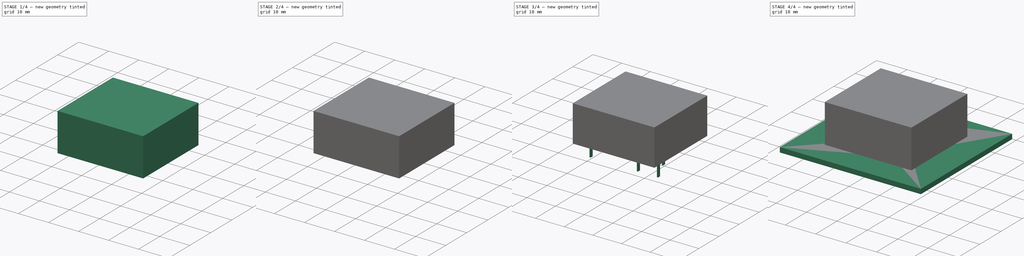
[diagram: build sequence overview — one tinted view per stage of 4, left to right]
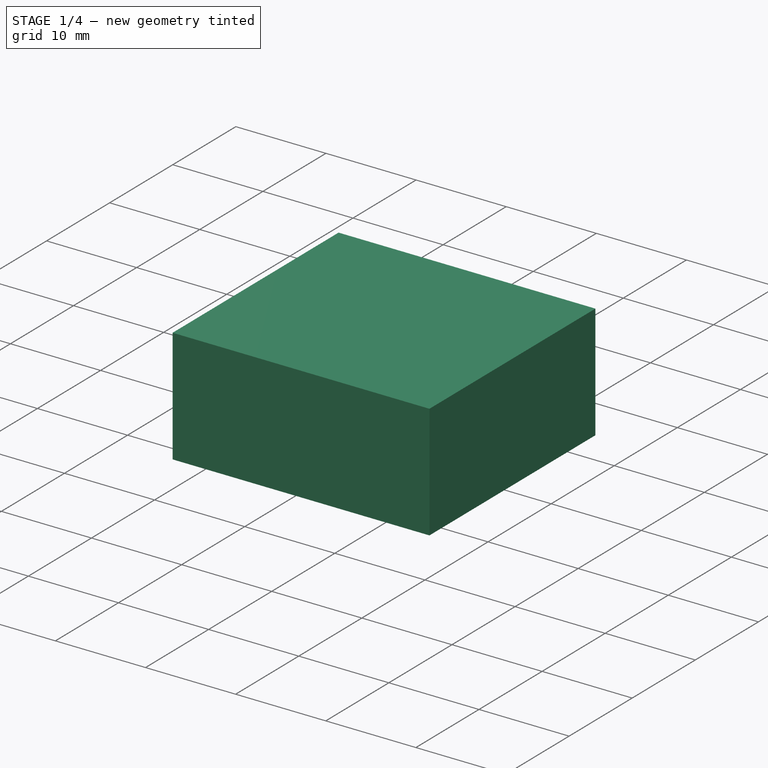
[diagram: stage 1 of 4 — iso view after this stage's code; geometry added in this stage tinted green]
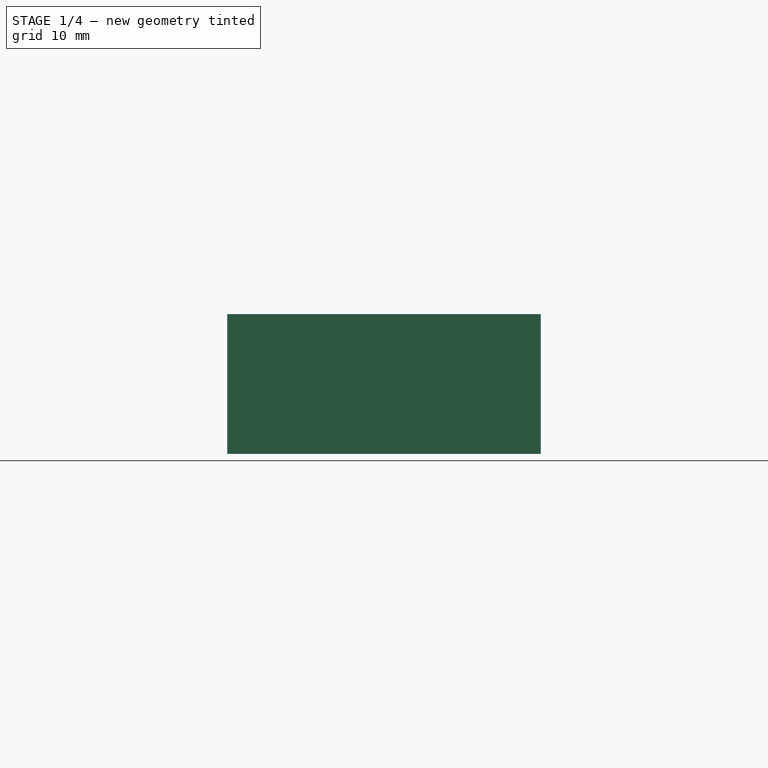
[diagram: stage 1 of 4 — front view after this stage's code; geometry added in this stage tinted green]
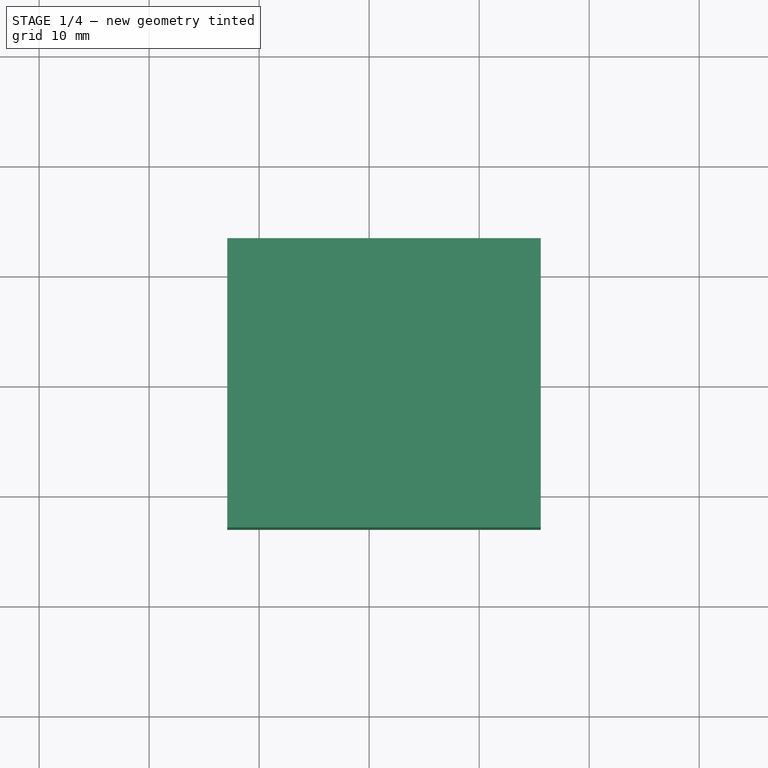
[diagram: stage 1 of 4 — top view after this stage's code; geometry added in this stage tinted green]
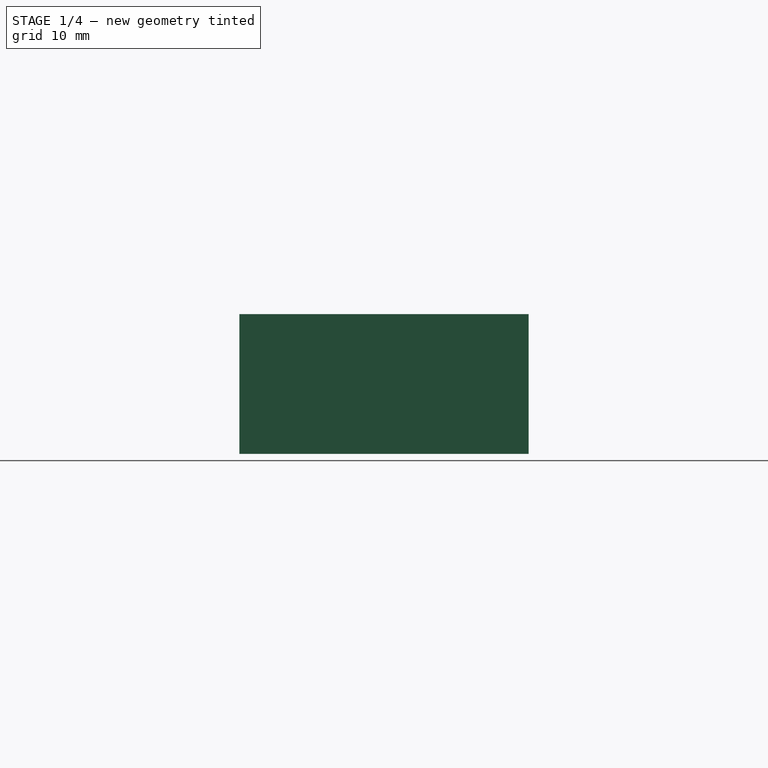
[diagram: stage 1 of 4 — right view after this stage's code; geometry added in this stage tinted green]
FCSTD DOCUMENT  (FreeCAD 0.16R6712 (Git))
Label: Relay_SPDT_Finder_40.11
License: All rights reserved
LicenseURL: http://en.wikipedia.org/wiki/All_rights_reserved
objects: Sketcher::SketchObject×9, Part::FeaturePython×6, PartDesign::Pad×5, Part::Feature×3, PartDesign::Revolution×3, App::DocumentObjectGroup×2, PartDesign::Pocket×1, Part::MultiFuse×1
note: 37 computed .brp shape members not serialized (recipe doc carries the construction recipe); baked Part::Feature solids carry a one-line shape summary decoded from their .brp

FEATURE [Sketcher::SketchObject] Sketch005
  sketch-geometry (4):
    g0: LineSegment StartX=-2.9 StartY=3.3 StartZ=0 EndX=25.6 EndY=3.3 EndZ=0
    g1: LineSegment StartX=25.6 StartY=3.3 StartZ=0 EndX=25.6 EndY=-23 EndZ=0
    g2: LineSegment StartX=25.6 StartY=-23 StartZ=0 EndX=-2.9 EndY=-23 EndZ=0
    g3: LineSegment StartX=-2.9 StartY=-23 StartZ=0 EndX=-2.9 EndY=3.3 EndZ=0
  constraints (12):
    c: Coincident(g0,g1)
    c: Coincident(g1,g2)
    c: Coincident(g2,g3)
    c: Coincident(g3,g0)
    c: Horizontal(g0)
    c: Horizontal(g2)
    c: Vertical(g1)
    c: Vertical(g3)
    c: DistanceX(g0,g-1) = 2.9
    c: DistanceY(g-1,g0) = 3.3
    c: DistanceY(g3,g3) = 26.3
    c: DistanceX(g0,g0) = 28.5
FEATURE [PartDesign::Pad] Pad001
  Length = 0.5
  Length2 = 100
  Sketch = -> Sketch005
  Type = 0
FEATURE [Sketcher::SketchObject] Sketch006
  ExternalGeometry = -> [Pad001]
  Placement = pos=(0,0,0.5) rot=(0,0,1;0rad)
  Support = -> Pad001 [Face6]
  sketch-geometry (8):
    g0: LineSegment StartX=-2.9 StartY=3.3 StartZ=0 EndX=25.6 EndY=3.3 EndZ=0
    g1: LineSegment StartX=25.6 StartY=3.3 StartZ=0 EndX=25.6 EndY=-23 EndZ=0
    g2: LineSegment StartX=25.6 StartY=-23 StartZ=0 EndX=-2.9 EndY=-23 EndZ=0
    g3: LineSegment StartX=-2.9 StartY=-23 StartZ=0 EndX=-2.9 EndY=3.3 EndZ=0
    g4: LineSegment StartX=25.1 StartY=-22.5 StartZ=0 EndX=-2.4 EndY=-22.5 EndZ=0
    g5: LineSegment StartX=-2.4 StartY=-22.5 StartZ=0 EndX=-2.4 EndY=2.8 EndZ=0
    g6: LineSegment StartX=-2.4 StartY=2.8 StartZ=0 EndX=25.1 EndY=2.8 EndZ=0
    g7: LineSegment StartX=25.1 StartY=2.8 StartZ=0 EndX=25.1 EndY=-22.5 EndZ=0
  constraints (22):
    c: Coincident(g0,g1)
    c: Coincident(g1,g2)
    c: Coincident(g2,g3)
    c: Coincident(g3,g0)
    c: Horizontal(g0)
    c: Horizontal(g2)
    c: Vertical(g1)
    c: Vertical(g3)
    c: Coincident(g0,g-3)
    c: Coincident(g1,g-4)
    c: Coincident(g4,g5)
    c: Coincident(g5,g6)
    c: Coincident(g6,g7)
    c: Coincident(g7,g4)
    c: Horizontal(g4)
    c: Horizontal(g6)
    c: Vertical(g5)
    c: Vertical(g7)
    c: DistanceX(g0,g5) = 0.5
    c: DistanceY(g5,g0) = 0.5
    c: DistanceX(g6,g0) = 0.5
    c: DistanceY(g1,g4) = 0.5
FEATURE [PartDesign::Pad] Pad002
  Length = 11.95
  Length2 = 100
  Sketch = -> Sketch006
  Type = 0
FEATURE [Sketcher::SketchObject] Sketch008
  Placement = pos=(0,0,12.7) rot=(0,0,1;0rad)
  sketch-geometry (4):
    g0: LineSegment StartX=-2.9 StartY=-23 StartZ=0 EndX=25.6 EndY=-23 EndZ=0
    g1: LineSegment StartX=25.6 StartY=-23 StartZ=0 EndX=25.6 EndY=3.3 EndZ=0
    g2: LineSegment StartX=25.6 StartY=3.3 StartZ=0 EndX=-2.9 EndY=3.3 EndZ=0
    g3: LineSegment StartX=-2.9 StartY=3.3 StartZ=0 EndX=-2.9 EndY=-23 EndZ=0
  constraints (12):
    c: Coincident(g0,g1)
    c: Coincident(g1,g2)
    c: Coincident(g2,g3)
    c: Coincident(g3,g0)
    c: Horizontal(g0)
    c: Horizontal(g2)
    c: Vertical(g1)
    c: Vertical(g3)
    c: DistanceX(g2,g-1) = 2.9
    c: DistanceY(g-1,g2) = 3.3
    c: DistanceY(g1,g1) = 26.3
    c: DistanceX(g0,g0) = 28.5
FEATURE [PartDesign::Pad] Pad003
  Length = 0.24
  Length2 = 100
  Placement = pos=(0,0,12.7) rot=(0,0,1;0rad)
  Reversed = true
  Sketch = -> Sketch008
  Type = 0
FEATURE [Sketcher::SketchObject] Sketch009
  ExternalGeometry = -> [Pad003]
  Placement = pos=(0,0,12.46) rot=(1,0,0;3.14159rad)
  Support = -> Pad003 [Face6]
  sketch-geometry (8):
    g0: LineSegment StartX=-2.9 StartY=23 StartZ=0 EndX=25.6 EndY=23 EndZ=0
    g1: LineSegment StartX=25.6 StartY=23 StartZ=0 EndX=25.6 EndY=-3.3 EndZ=0
    g2: LineSegment StartX=25.6 StartY=-3.3 StartZ=0 EndX=-2.9 EndY=-3.3 EndZ=0
    g3: LineSegment StartX=-2.9 StartY=-3.3 StartZ=0 EndX=-2.9 EndY=23 EndZ=0
    g4: LineSegment StartX=25.36 StartY=-3.06 StartZ=0 EndX=-2.66 EndY=-3.06 EndZ=0
    g5: LineSegment StartX=-2.66 StartY=-3.06 StartZ=0 EndX=-2.66 EndY=22.76 EndZ=0
    g6: LineSegment StartX=-2.66 StartY=22.76 StartZ=0 EndX=25.36 EndY=22.76 EndZ=0
    g7: LineSegment StartX=25.36 StartY=22.76 StartZ=0 EndX=25.36 EndY=-3.06 EndZ=0
  constraints (22):
    c: Coincident(g0,g1)
    c: Coincident(g1,g2)
    c: Coincident(g2,g3)
    c: Coincident(g3,g0)
    c: Horizontal(g0)
    c: Horizontal(g2)
    c: Vertical(g1)
    c: Vertical(g3)
    c: Coincident(g0,g-4)
    c: Coincident(g1,g-3)
    c: Coincident(g4,g5)
    c: Coincident(g5,g6)
    c: Coincident(g6,g7)
    c: Coincident(g7,g4)
    c: Horizontal(g4)
    c: Horizontal(g6)
    c: Vertical(g5)
    c: Vertical(g7)
    c: DistanceX(g4,g1) = 0.24
    c: DistanceY(g1,g4) = 0.24
    c: DistanceX(g2,g4) = 0.24
    c: DistanceY(g5,g0) = 0.24
FEATURE [PartDesign::Pad] Pad004
  Length = 6.14
  Length2 = 100
  Placement = pos=(0,0,12.7) rot=(0,0,1;0rad)
  Sketch = -> Sketch009
  Type = 0
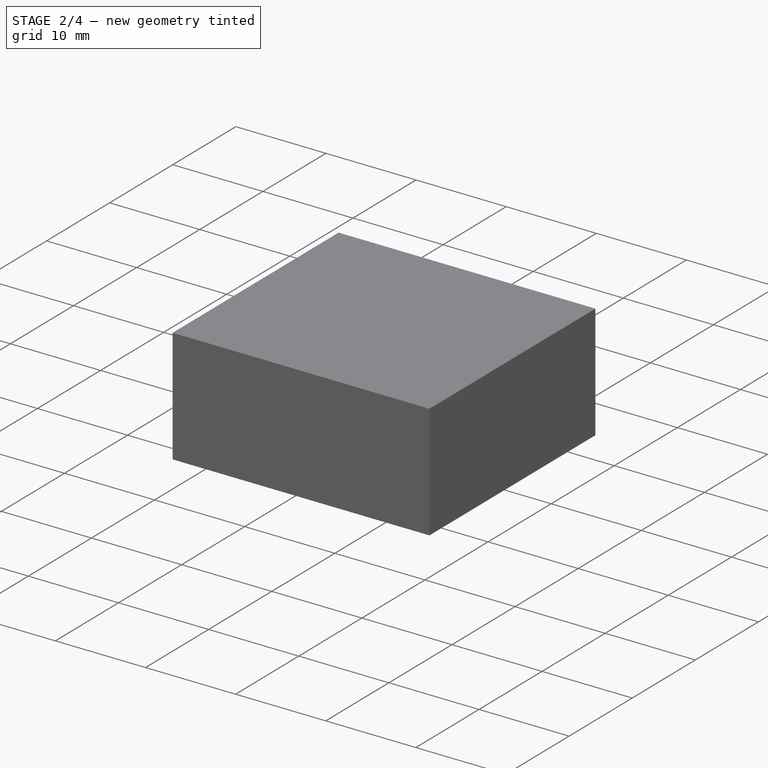
[diagram: stage 2 of 4 — iso view after this stage's code; geometry added in this stage tinted green]
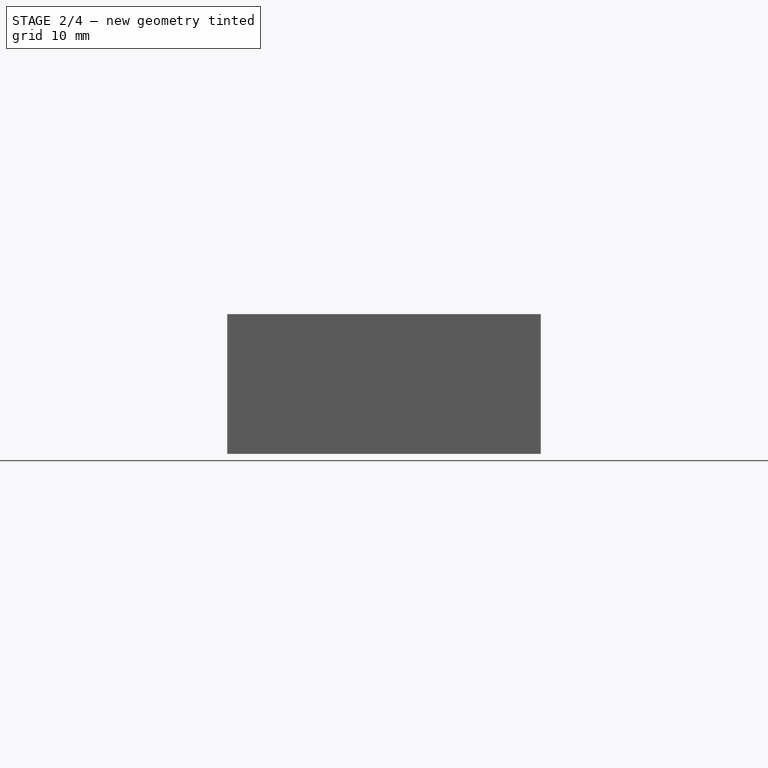
[diagram: stage 2 of 4 — front view after this stage's code; geometry added in this stage tinted green]
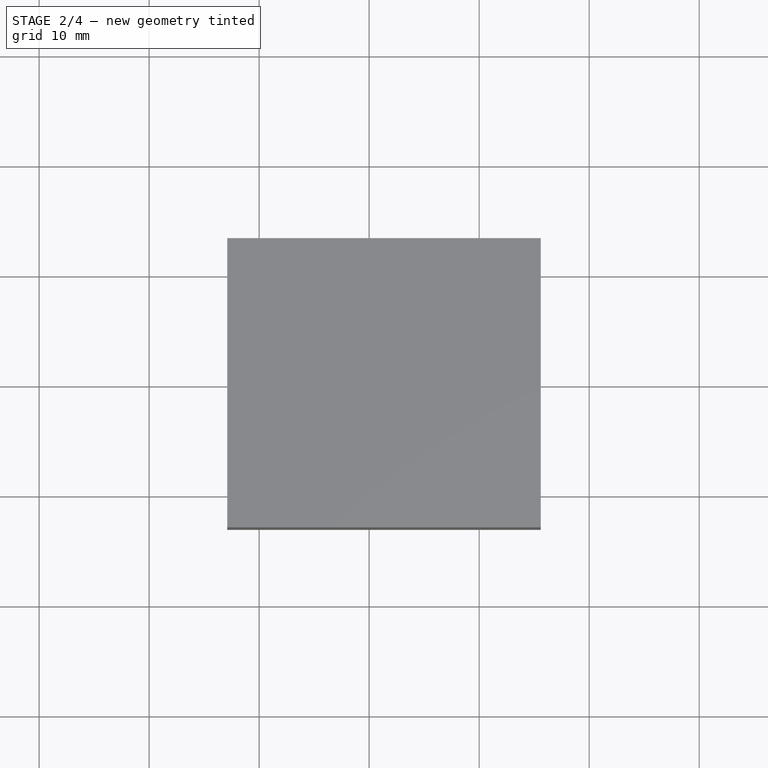
[diagram: stage 2 of 4 — top view after this stage's code; geometry added in this stage tinted green]
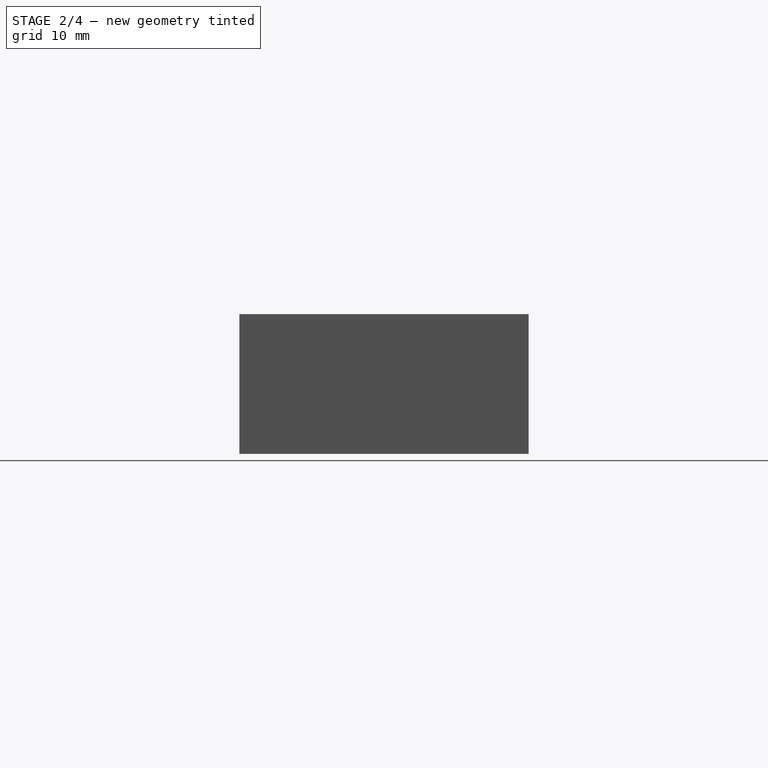
[diagram: stage 2 of 4 — right view after this stage's code; geometry added in this stage tinted green]
FEATURE [PartDesign::Revolution] Revolution001
  Angle = 360
  Axis = (0,21.0206,0)
  Base = (3.98183,-18.0206,4.75)
  Placement = pos=(0,3,4.75) rot=(0,0,1;3.14159rad)
  ReferenceAxis = -> Sketch003 [Axis0]
  Sketch = -> Sketch003
FEATURE [Sketcher::SketchObject] Sketch004
  Placement = pos=(0,3,4.75) rot=(0,0,1;3.14159rad)
  expr: Constraints[14] = 4.25 + 0.25 + 15
  sketch-geometry (5):
    g0: LineSegment [constr] StartX=-4 StartY=21.0206 StartZ=0 EndX=-4 EndY=0 EndZ=0
    g1: LineSegment StartX=-4 StartY=19.25 StartZ=0 EndX=0 EndY=19.25 EndZ=0
    g2: LineSegment StartX=0 StartY=19.25 StartZ=0 EndX=0 EndY=19.5 EndZ=0
    g3: LineSegment StartX=0 StartY=19.5 StartZ=0 EndX=-4 EndY=19.5 EndZ=0
    g4: LineSegment StartX=-4 StartY=19.5 StartZ=0 EndX=-4 EndY=19.25 EndZ=0
  constraints (15):
    c: PointOnObject(g0,g-1)
    c: Vertical(g0)
    c: PointOnObject(g1,g0)
    c: DistanceX(g1,g-1) = 4
    c: Coincident(g1,g2)
    c: Coincident(g2,g3)
    c: Coincident(g3,g4)
    c: Coincident(g4,g1)
    c: Horizontal(g1)
    c: Horizontal(g3)
    c: Vertical(g2)
    c: Vertical(g4)
    c: DistanceX(g3,g3) = 4
    c: DistanceY(g2,g2) = 0.25
    c: DistanceY(g0,g3) = 19.5
FEATURE [PartDesign::Revolution] Revolution002
  Angle = 360
  Axis = (0,21.0206,0)
  Base = (4,-18.0206,4.75)
  Placement = pos=(0,3,4.75) rot=(0,0,1;3.14159rad)
  ReferenceAxis = -> Sketch004 [Axis0]
  Sketch = -> Sketch004
FEATURE [Sketcher::SketchObject] Sketch007
  ExternalGeometry = -> [Pad002]
  Placement = pos=(0,0,12.45) rot=(0,0,1;0rad)
  Support = -> Pad002 [Face10]
  sketch-geometry (8):
    g0: LineSegment StartX=-2.9 StartY=3.3 StartZ=0 EndX=25.6 EndY=3.3 EndZ=0
    g1: LineSegment StartX=25.6 StartY=3.3 StartZ=0 EndX=25.6 EndY=-23 EndZ=0
    g2: LineSegment StartX=25.6 StartY=-23 StartZ=0 EndX=-2.9 EndY=-23 EndZ=0
    g3: LineSegment StartX=-2.9 StartY=-23 StartZ=0 EndX=-2.9 EndY=3.3 EndZ=0
    g4: LineSegment StartX=25.35 StartY=-22.75 StartZ=0 EndX=-2.65 EndY=-22.75 EndZ=0
    g5: LineSegment StartX=-2.65 StartY=-22.75 StartZ=0 EndX=-2.65 EndY=3.05 EndZ=0
    g6: LineSegment StartX=-2.65 StartY=3.05 StartZ=0 EndX=25.35 EndY=3.05 EndZ=0
    g7: LineSegment StartX=25.35 StartY=3.05 StartZ=0 EndX=25.35 EndY=-22.75 EndZ=0
  constraints (22):
    c: Coincident(g0,g1)
    c: Coincident(g1,g2)
    c: Coincident(g2,g3)
    c: Coincident(g3,g0)
    c: Horizontal(g0)
    c: Horizontal(g2)
    c: Vertical(g1)
    c: Vertical(g3)
    c: Coincident(g0,g-3)
    c: Coincident(g1,g-4)
    c: Coincident(g4,g5)
    c: Coincident(g5,g6)
    c: Coincident(g6,g7)
    c: Coincident(g7,g4)
    c: Horizontal(g4)
    c: Horizontal(g6)
    c: Vertical(g5)
    c: Vertical(g7)
    c: DistanceX(g4,g1) = 0.25
    c: DistanceY(g1,g4) = 0.25
    c: DistanceY(g5,g0) = 0.25
    c: DistanceX(g0,g5) = 0.25
FEATURE [PartDesign::Pocket] Pocket
  Length = 6.1
  Sketch = -> Sketch007
  Type = 0
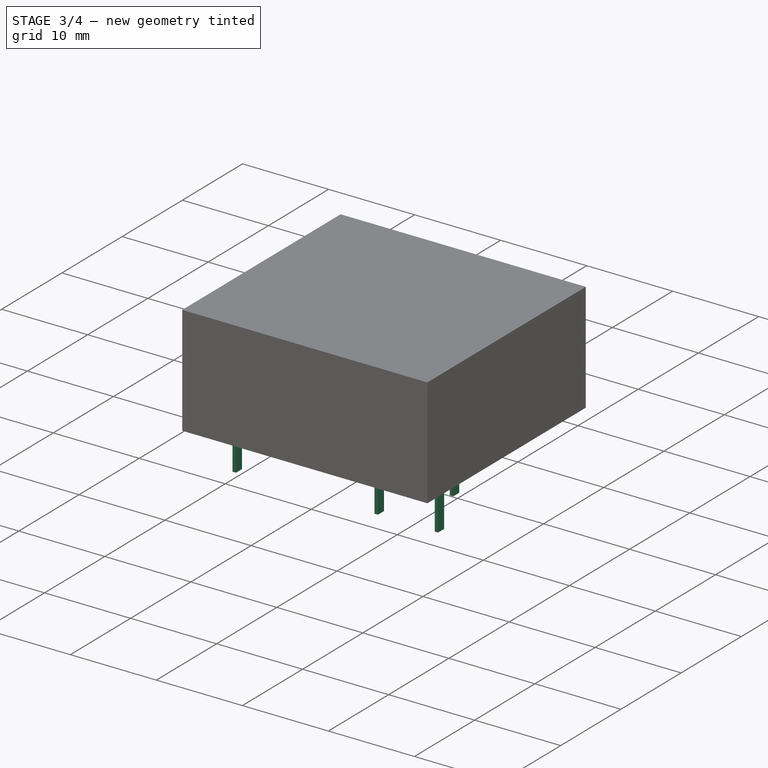
[diagram: stage 3 of 4 — iso view after this stage's code; geometry added in this stage tinted green]
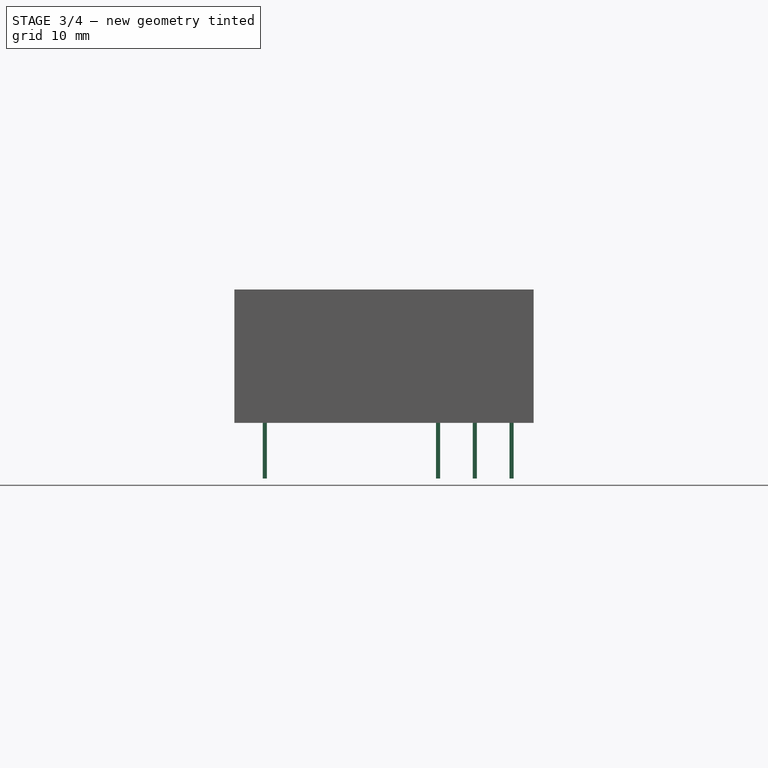
[diagram: stage 3 of 4 — front view after this stage's code; geometry added in this stage tinted green]
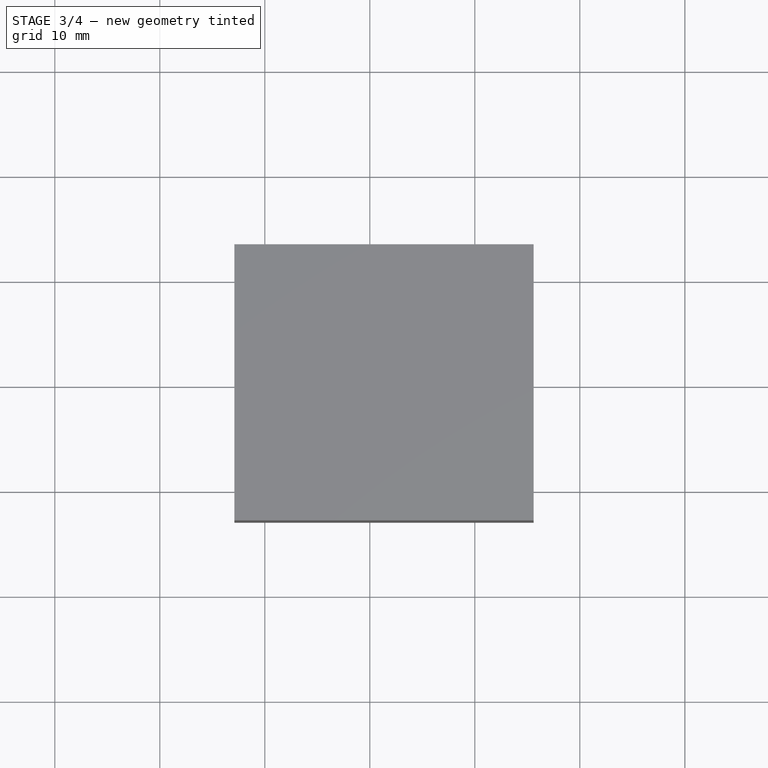
[diagram: stage 3 of 4 — top view after this stage's code; geometry added in this stage tinted green]
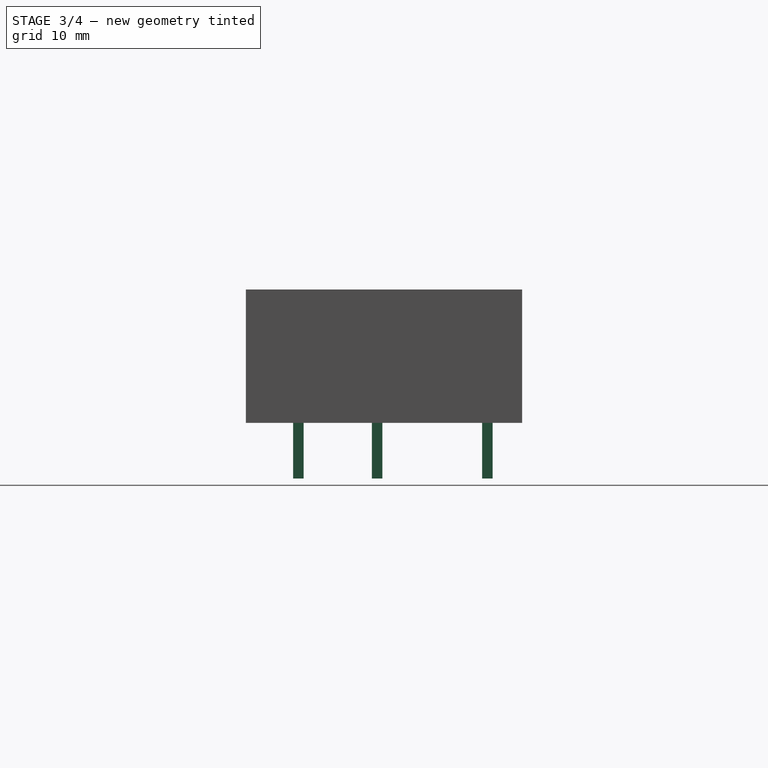
[diagram: stage 3 of 4 — right view after this stage's code; geometry added in this stage tinted green]
FEATURE [Sketcher::SketchObject] Sketch
  Placement = pos=(0,-18,0.5) rot=(0,0,1;1.5708rad)
  sketch-geometry (27):
    g0: LineSegment StartX=-0.5 StartY=0.2 StartZ=0 EndX=0.5 EndY=0.2 EndZ=0
    g1: LineSegment StartX=0.5 StartY=0.2 StartZ=0 EndX=0.5 EndY=-0.2 EndZ=0
    g2: LineSegment StartX=0.5 StartY=-0.2 StartZ=0 EndX=-0.5 EndY=-0.2 EndZ=0
    g3: LineSegment StartX=-0.5 StartY=-0.2 StartZ=0 EndX=-0.5 EndY=0.2 EndZ=0
    g4: GeomPoint [constr] X=0 Y=0.2 Z=0
    g5: GeomPoint [constr] X=0.5 Y=0 Z=0
    g6: LineSegment StartX=17.5 StartY=0.2 StartZ=0 EndX=18.5 EndY=0.2 EndZ=0
    g7: LineSegment StartX=18.5 StartY=0.2 StartZ=0 EndX=18.5 EndY=-0.2 EndZ=0
    g8: LineSegment StartX=18.5 StartY=-0.2 StartZ=0 EndX=17.5 EndY=-0.2 EndZ=0
    g9: LineSegment StartX=17.5 StartY=-0.2 StartZ=0 EndX=17.5 EndY=0.2 EndZ=0
    g10: LineSegment StartX=-0.5 StartY=-16.3 StartZ=0 EndX=0.5 EndY=-16.3 EndZ=0
    g11: LineSegment StartX=0.5 StartY=-16.3 StartZ=0 EndX=0.5 EndY=-16.7 EndZ=0
    g12: LineSegment StartX=0.5 StartY=-16.7 StartZ=0 EndX=-0.5 EndY=-16.7 EndZ=0
    g13: LineSegment StartX=-0.5 StartY=-16.7 StartZ=0 EndX=-0.5 EndY=-16.3 EndZ=0
    g14: LineSegment StartX=-0.5 StartY=-23.3 StartZ=0 EndX=0.5 EndY=-23.3 EndZ=0
    g15: LineSegment StartX=0.5 StartY=-23.3 StartZ=0 EndX=0.5 EndY=-23.7 EndZ=0
    g16: LineSegment StartX=0.5 StartY=-23.7 StartZ=0 EndX=-0.5 EndY=-23.7 EndZ=0
    g17: LineSegment StartX=-0.5 StartY=-23.7 StartZ=0 EndX=-0.5 EndY=-23.3 EndZ=0
    g18: LineSegment StartX=7 StartY=-19.8 StartZ=0 EndX=8 EndY=-19.8 EndZ=0
    g19: LineSegment StartX=8 StartY=-19.8 StartZ=0 EndX=8 EndY=-20.2 EndZ=0
    g20: LineSegment StartX=8 StartY=-20.2 StartZ=0 EndX=7 EndY=-20.2 EndZ=0
    g21: LineSegment StartX=7 StartY=-20.2 StartZ=0 EndX=7 EndY=-19.8 EndZ=0
    g22: LineSegment [constr] StartX=-0.5 StartY=0 StartZ=0 EndX=-0.5 EndY=-16.5 EndZ=0
    g23: LineSegment [constr] StartX=-0.5 StartY=-16.5 StartZ=0 EndX=-0.5 EndY=-20 EndZ=0
    g24: LineSegment [constr] StartX=-0.5 StartY=-20 StartZ=0 EndX=-0.5 EndY=-23.5 EndZ=0
    g25: LineSegment [constr] StartX=-0.5 StartY=0 StartZ=0 EndX=17.5 EndY=0 EndZ=0
    g26: LineSegment [constr] StartX=-0.5 StartY=-20 StartZ=0 EndX=7 EndY=-20 EndZ=0
  constraints (77):
    c: Coincident(g0,g1)
    c: Coincident(g1,g2)
    c: Coincident(g2,g3)
    c: Coincident(g3,g0)
    c: Horizontal(g0)
    c: Horizontal(g2)
    c: Vertical(g1)
    c: Vertical(g3)
    c: PointOnObject(g4,g0)
    c: PointOnObject(g5,g-1)
    c: Symmetric(g1,g1,g5)
    c: Symmetric(g0,g0,g4)
    c: PointOnObject(g4,g-2)
    c: DistanceY(g3,g3) = 0.4
    c: DistanceX(g0,g0) = 1
    c: Coincident(g6,g7)
    c: Coincident(g7,g8)
    c: Coincident(g8,g9)
    c: Coincident(g9,g6)
    c: Horizontal(g6)
    c: Horizontal(g8)
    c: Vertical(g7)
    c: Vertical(g9)
    c: Coincident(g10,g11)
    c: Coincident(g11,g12)
    c: Coincident(g12,g13)
    c: Coincident(g13,g10)
    c: Horizontal(g10)
    c: Horizontal(g12)
    c: Vertical(g11)
    c: Vertical(g13)
    c: Coincident(g14,g15)
    c: Coincident(g15,g16)
    c: Coincident(g16,g17)
    c: Coincident(g17,g14)
    c: Horizontal(g14)
    c: Horizontal(g16)
    c: Vertical(g15)
    c: Vertical(g17)
    c: Coincident(g18,g19)
    c: Coincident(g19,g20)
    c: Coincident(g20,g21)
    c: Coincident(g21,g18)
    c: Horizontal(g18)
    c: Horizontal(g20)
    c: Vertical(g19)
    c: Vertical(g21)
    c: Equal(g12,g2)
    c: Equal(g9,g21)
    c: Equal(g11,g1)
    c: PointOnObject(g22,g3)
    c: Coincident(g23,g22)
    c: PointOnObject(g24,g17)
    c: Symmetric(g17,g17,g24)
    c: Symmetric(g13,g13,g22)
    c: Symmetric(g3,g3,g22)
    c: Coincident(g25,g22)
    c: Horizontal(g25)
    c: Symmetric(g9,g9,g25)
    c: PointOnObject(g26,g21)
    c: Symmetric(g21,g21,g26)
    c: Horizontal(g26)
    c: Vertical(g23)
    c: Vertical(g24)
    c: Vertical(g22)
    c: DistanceX(g25,g25) = 18
    c: Equal(g24,g23)
    c: DistanceY(g24,g24) = 3.5
    c: Equal(g18,g6)
    c: Equal(g6,g0)
    c: Equal(g3,g19)
    c: Equal(g14,g10)
    c: Equal(g15,g11)
    c: Coincident(g24,g23)
    c: Coincident(g23,g26)
    c: DistanceY(g23,g22) = 20
    c: DistanceX(g26,g26) = 7.5
FEATURE [PartDesign::Pad] Pad
  Length = 5.8
  Length2 = 100
  Placement = pos=(0,-18,0.5) rot=(0,0,1;1.5708rad)
  Reversed = true
  Sketch = -> Sketch
  Type = 0
FEATURE [Part::Feature] FusionAxisZ1  label="Z"
  shape: bbox 0.8 x 0.8 x 14 mm, 8 faces (baked)
FEATURE [Part::Feature] FusionAxisY1  label="Y"
  Placement = pos=(0,0,0.05) rot=(-1,0,0;1.5708rad)
  shape: bbox 0.8 x 14 x 0.8 mm, 8 faces (baked)
FEATURE [Part::Feature] FusionAxisX1  label="X"
  Placement = pos=(0,-0.05,0) rot=(0,1,0;1.5708rad)
  shape: bbox 14 x 0.8 x 0.8 mm, 8 faces (baked)
FEATURE [App::DocumentObjectGroup] axis
  Group = -> [FusionAxisZ1,FusionAxisY1,FusionAxisX1]
FEATURE [Sketcher::SketchObject] Sketch002
  Placement = pos=(0,3,4.75) rot=(0,0,1;3.14159rad)
  sketch-geometry (5):
    g0: LineSegment StartX=-4 StartY=19.25 StartZ=0 EndX=-0.3 EndY=19.25 EndZ=0
    g1: LineSegment StartX=-0.3 StartY=19.25 StartZ=0 EndX=-0.3 EndY=4.25 EndZ=0
    g2: LineSegment StartX=-0.3 StartY=4.25 StartZ=0 EndX=-4 EndY=4.25 EndZ=0
    g3: LineSegment StartX=-4 StartY=4.25 StartZ=0 EndX=-4 EndY=19.25 EndZ=0
    g4: LineSegment [constr] StartX=-4 StartY=21.0206 StartZ=0 EndX=-4 EndY=0 EndZ=0
  constraints (15):
    c: Coincident(g0,g1)
    c: Coincident(g1,g2)
    c: Coincident(g2,g3)
    c: Coincident(g3,g0)
    c: Horizontal(g0)
    c: Horizontal(g2)
    c: Vertical(g1)
    c: Vertical(g3)
    c: PointOnObject(g4,g-1)
    c: Vertical(g4)
    c: PointOnObject(g0,g4)
    c: DistanceX(g0,g0) = 3.7
    c: DistanceX(g0,g-1) = 4
    c: DistanceY(g-1,g2) = 4.25
    c: DistanceY(g1,g1) = 15
FEATURE [Sketcher::SketchObject] Sketch003
  Placement = pos=(0,3,4.75) rot=(0,0,1;3.14159rad)
  sketch-geometry (5):
    g0: LineSegment [constr] StartX=-3.98183 StartY=21.0206 StartZ=0 EndX=-3.98183 EndY=0 EndZ=0
    g1: LineSegment StartX=-3.98183 StartY=4.25 StartZ=0 EndX=0.0181709 EndY=4.25 EndZ=0
    g2: LineSegment StartX=0.0181709 StartY=4.25 StartZ=0 EndX=0.0181709 EndY=4 EndZ=0
    g3: LineSegment StartX=0.0181709 StartY=4 StartZ=0 EndX=-3.98183 EndY=4 EndZ=0
    g4: LineSegment StartX=-3.98183 StartY=4 StartZ=0 EndX=-3.98183 EndY=4.25 EndZ=0
  constraints (14):
    c: PointOnObject(g0,g-1)
    c: Vertical(g0)
    c: DistanceY(g-1,g1) = 4.25
    c: Coincident(g1,g2)
    c: Coincident(g2,g3)
    c: Coincident(g3,g4)
    c: Coincident(g4,g1)
    c: Horizontal(g1)
    c: Horizontal(g3)
    c: Vertical(g2)
    c: Vertical(g4)
    c: PointOnObject(g1,g0)
    c: DistanceX(g1,g1) = 4
    c: DistanceY(g2,g2) = 0.25
FEATURE [PartDesign::Revolution] Revolution
  Angle = 360
  Axis = (0,21.0206,0)
  Base = (4,-18.0206,4.75)
  Placement = pos=(0,3,4.75) rot=(0,0,1;3.14159rad)
  ReferenceAxis = -> Sketch002 [Axis0]
  Sketch = -> Sketch002
FEATURE [App::DocumentObjectGroup] Relay_SPDT_Finder_40_11_fp
  Group = -> [FFab_lines,Filk_lines,TopPads,BotPads,THPs,newPCB]
FEATURE [Part::MultiFuse] Revolution_mp_cp  label="Relay_SPDT_Finder_40.11"
  Shapes = -> [Revolution,Pocket,Pad004,Pad,Revolution001,Revolution002]
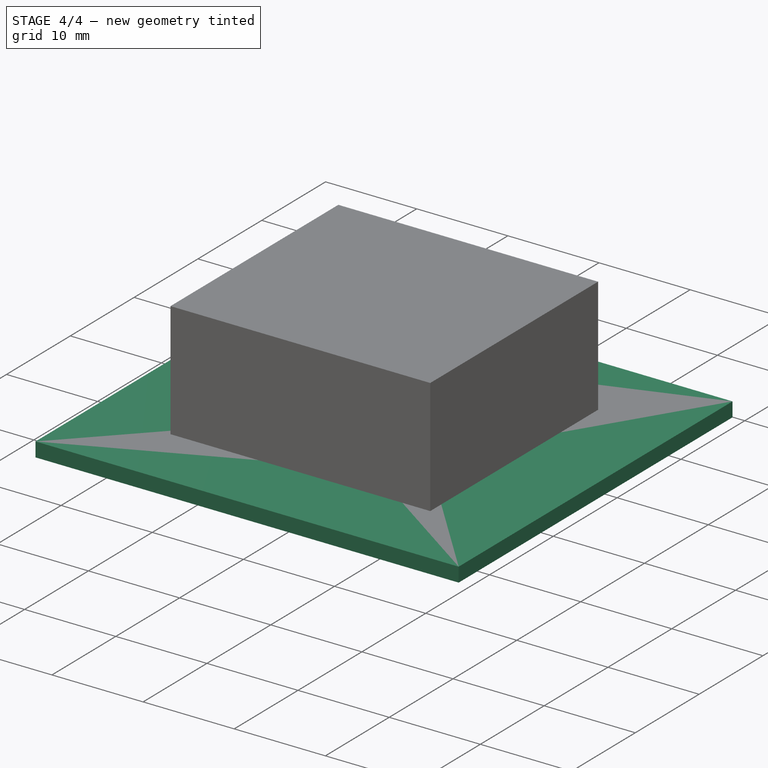
[diagram: stage 4 of 4 — iso view after this stage's code; geometry added in this stage tinted green]
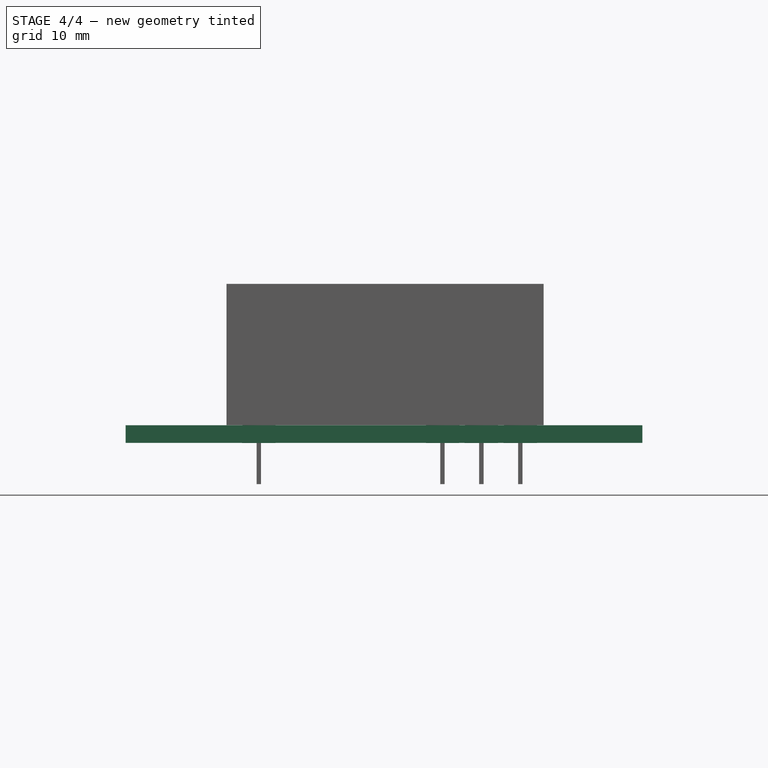
[diagram: stage 4 of 4 — front view after this stage's code; geometry added in this stage tinted green]
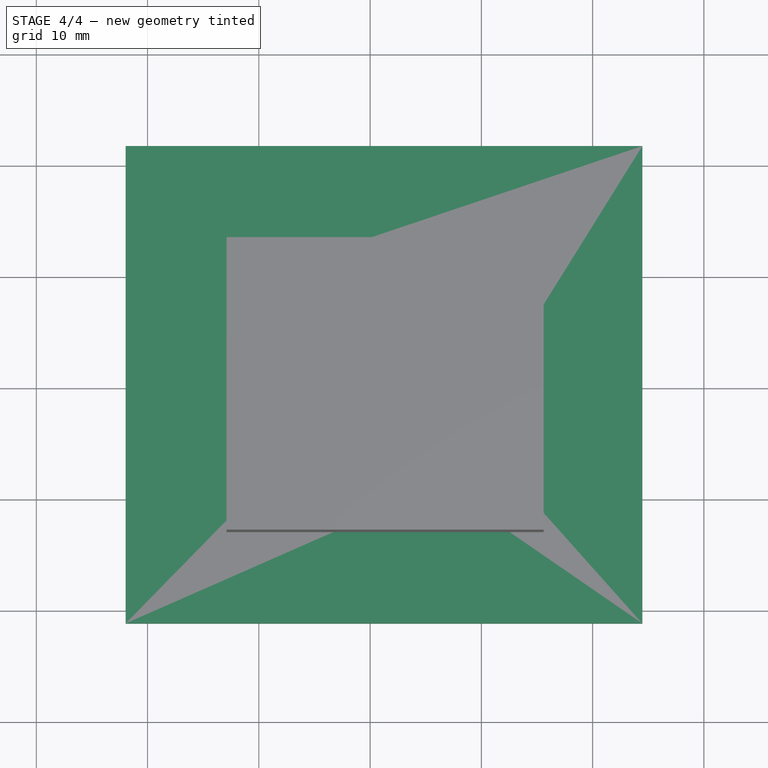
[diagram: stage 4 of 4 — top view after this stage's code; geometry added in this stage tinted green]
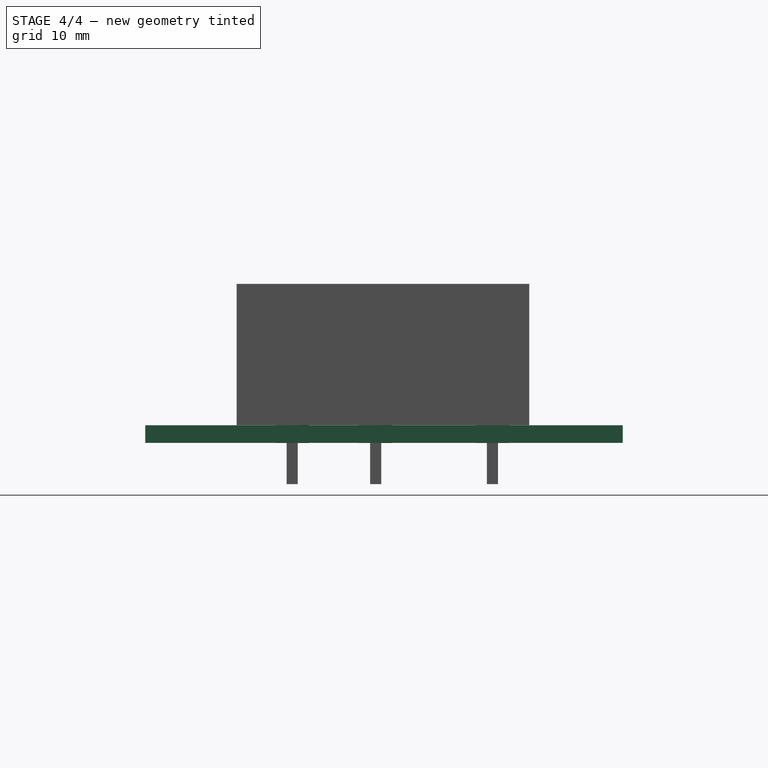
[diagram: stage 4 of 4 — right view after this stage's code; geometry added in this stage tinted green]
FEATURE [Part::FeaturePython] FFab_lines  label="FFab"  # a2plus imported part (geometry in sourceFile) (typed FeaturePython)
  fixedPosition = true
FEATURE [Part::FeaturePython] Filk_lines  label="FrontSilk"  # a2plus imported part (geometry in sourceFile) (typed FeaturePython)
  fixedPosition = true
FEATURE [Part::FeaturePython] TopPads  # a2plus imported part (geometry in sourceFile) (typed FeaturePython)
  fixedPosition = true
FEATURE [Part::FeaturePython] BotPads  # a2plus imported part (geometry in sourceFile) (typed FeaturePython)
  fixedPosition = true
FEATURE [Part::FeaturePython] THPs  label="PTHs"  # a2plus imported part (geometry in sourceFile) (typed FeaturePython)
  fixedPosition = true
FEATURE [Part::FeaturePython] newPCB  label="Pcb"  # a2plus imported part (geometry in sourceFile) (typed FeaturePython)
  fixedPosition = true
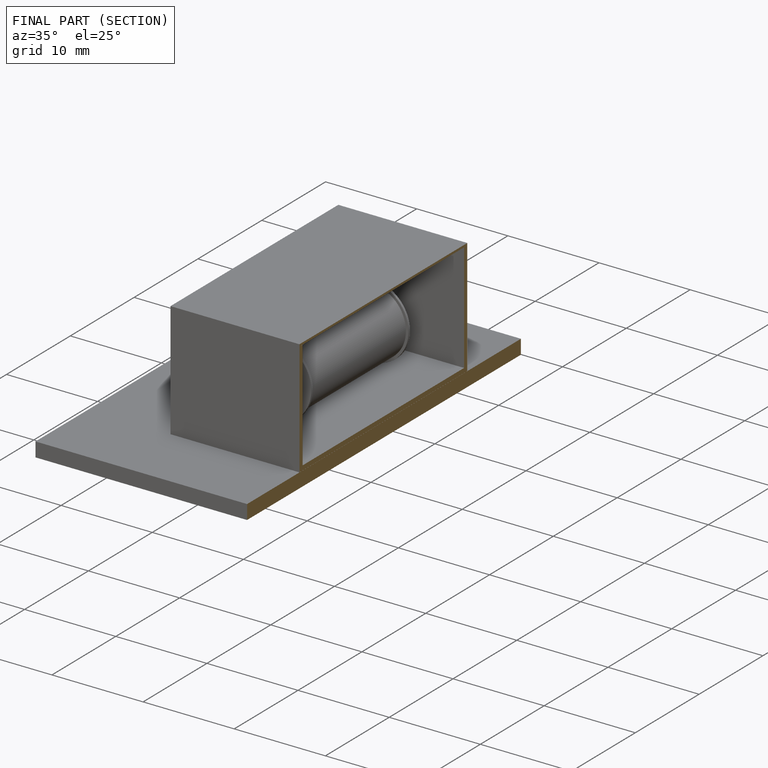
[diagram: finished part — half-section view (interior)]
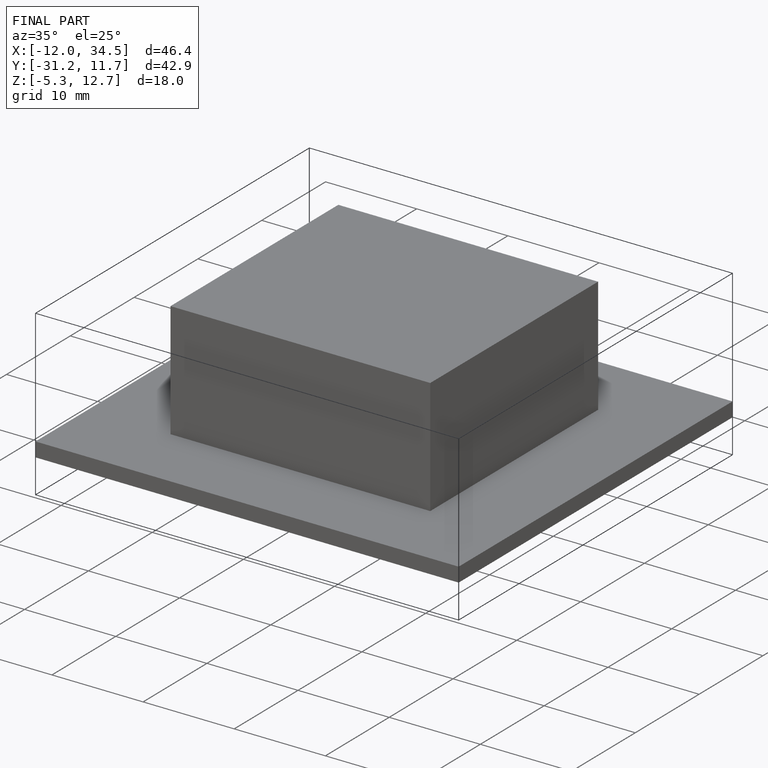
[diagram: finished part — iso view with bounding-box wireframe]
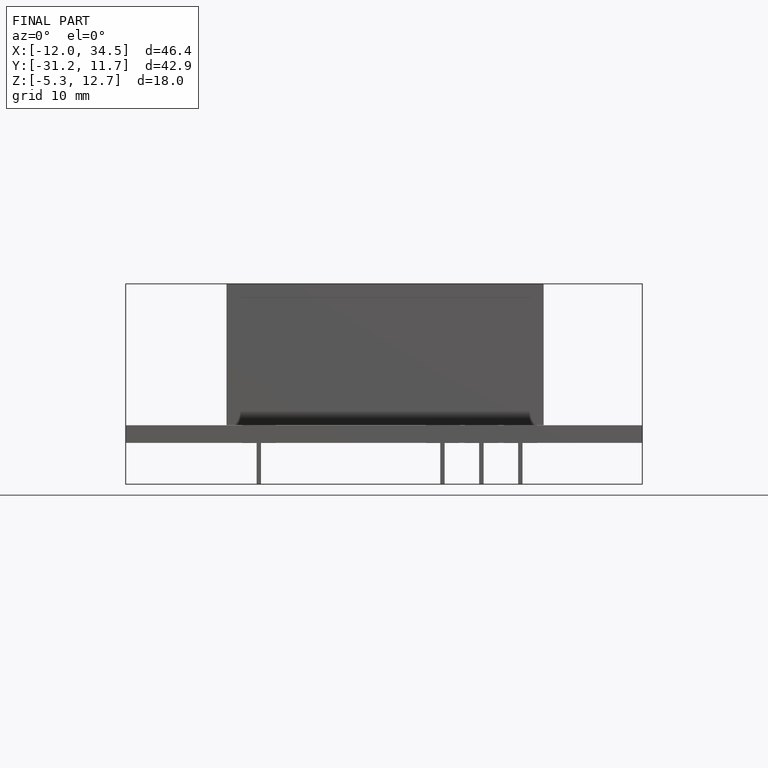
[diagram: finished part — front view with bounding-box wireframe]
